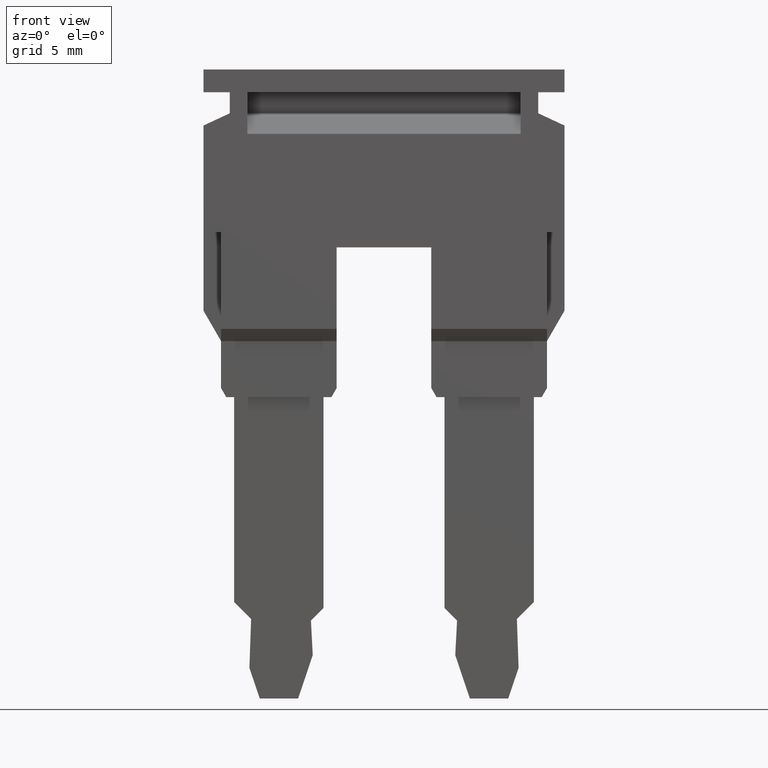
[diagram: clean part render]
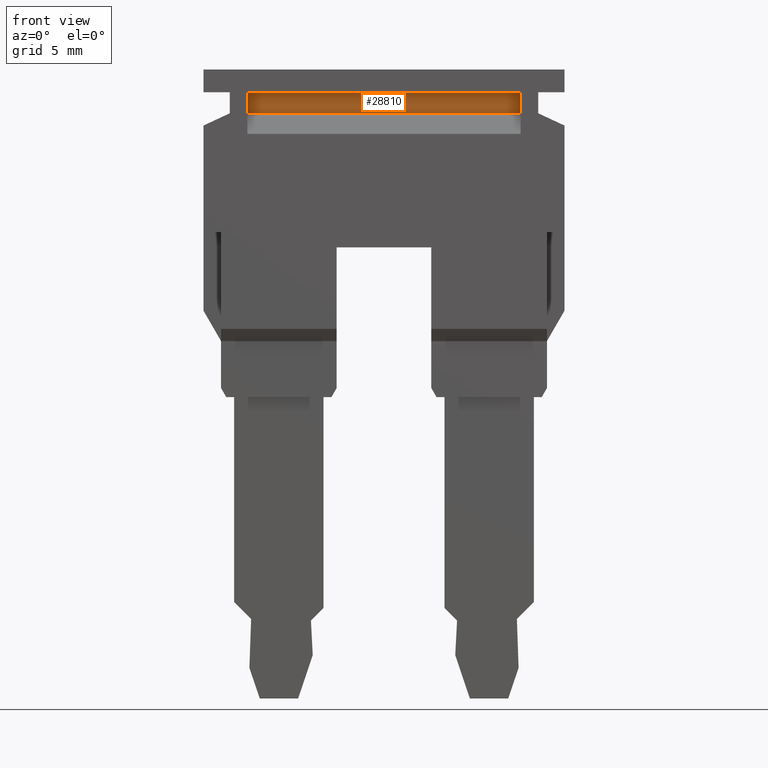
[diagram: same view with one face highlighted and labeled with its STEP entity id]
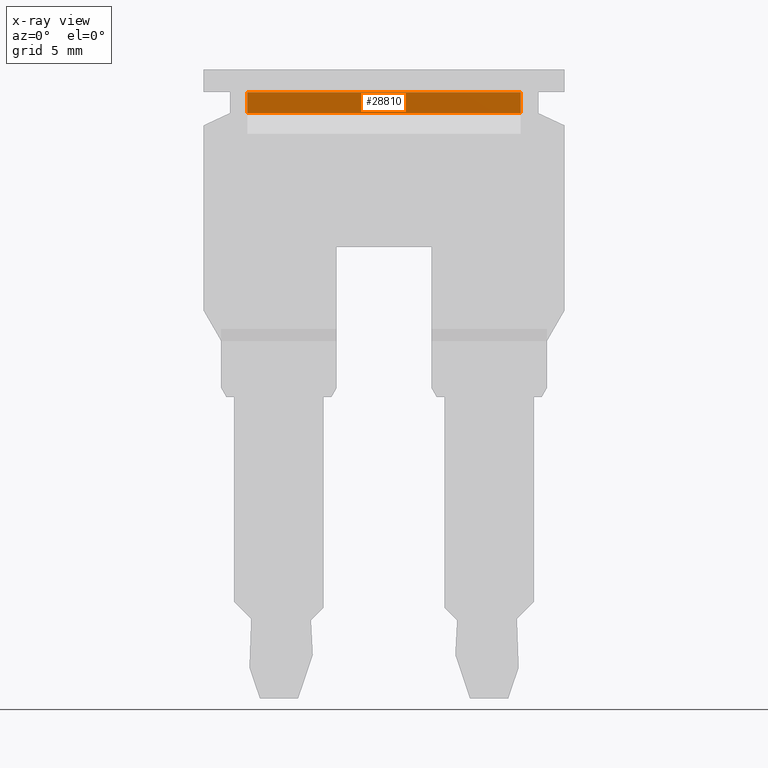
[diagram: x-ray of the same camera — body ghosted, the highlighted face saturated]
A machine part, front view. The second image highlights one B-rep face of the part: STEP entity #28810.
The next image is the same camera in x-ray: the body ghosted, the highlighted face saturated — about 0% of this face is hidden behind the body in this view.
In plain terms, the highlighted planar face has unit normal (-0, 1, -0).
Its self-contained STEP definition (entity closure, byte-faithful):
#27170=CARTESIAN_POINT('',(-10.55,42.9960271983001,-5.9));
#27180=VERTEX_POINT('',#27170);
#27320=CARTESIAN_POINT('',(-10.55,44.1960271983001,-5.9));
#27330=VERTEX_POINT('',#27320);
#27360=CARTESIAN_POINT('',(-10.55,26.7540884716326,-5.9));
#27370=DIRECTION('',(0.,1.,0.));
#27380=VECTOR('',#27370,1.);
#27390=LINE('',#27360,#27380);
#27400=EDGE_CURVE('',#27180,#27330,#27390,.T.);
#27660=CARTESIAN_POINT('',(-10.55,42.9960271983001,-5.60000000000002));
#27670=DIRECTION('',(0.,0.,-1.));
#27680=VECTOR('',#27670,1.);
#27690=LINE('',#27660,#27680);
#27700=CARTESIAN_POINT('',(-10.55,42.9960271983001,9.70000000000001));
#27710=VERTEX_POINT('',#27700);
#27720=EDGE_CURVE('',#27710,#27180,#27690,.T.);
#28250=CARTESIAN_POINT('',(-10.55,44.1960271983001,9.70000000000001));
#28260=VERTEX_POINT('',#28250);
#28290=CARTESIAN_POINT('',(-10.55,44.1960271983001,-5.60000000000002));
#28300=DIRECTION('',(0.,0.,-1.));
#28310=VECTOR('',#28300,1.);
#28320=LINE('',#28290,#28310);
#28330=EDGE_CURVE('',#28260,#27330,#28320,.T.);
#28510=CARTESIAN_POINT('',(-10.55,26.7540884716326,9.70000000000001));
#28520=DIRECTION('',(0.,1.,0.));
#28530=VECTOR('',#28520,1.);
#28540=LINE('',#28510,#28530);
#28550=EDGE_CURVE('',#27710,#28260,#28540,.T.);
#28700=CARTESIAN_POINT('',(-10.55,42.9960271983001,1.9));
#28710=DIRECTION('',(1.,0.,0.));
#28720=DIRECTION('',(0.,-1.,0.));
#28730=AXIS2_PLACEMENT_3D('',#28700,#28710,#28720);
#28740=PLANE('',#28730);
#28750=ORIENTED_EDGE('',*,*,#27400,.F.);
#28760=ORIENTED_EDGE('',*,*,#28330,.T.);
#28770=ORIENTED_EDGE('',*,*,#28550,.T.);
#28780=ORIENTED_EDGE('',*,*,#27720,.F.);
#28790=EDGE_LOOP('',(#28780,#28770,#28760,#28750));
#28800=FACE_OUTER_BOUND('',#28790,.T.);
#28810=ADVANCED_FACE('',(#28800),#28740,.F.);